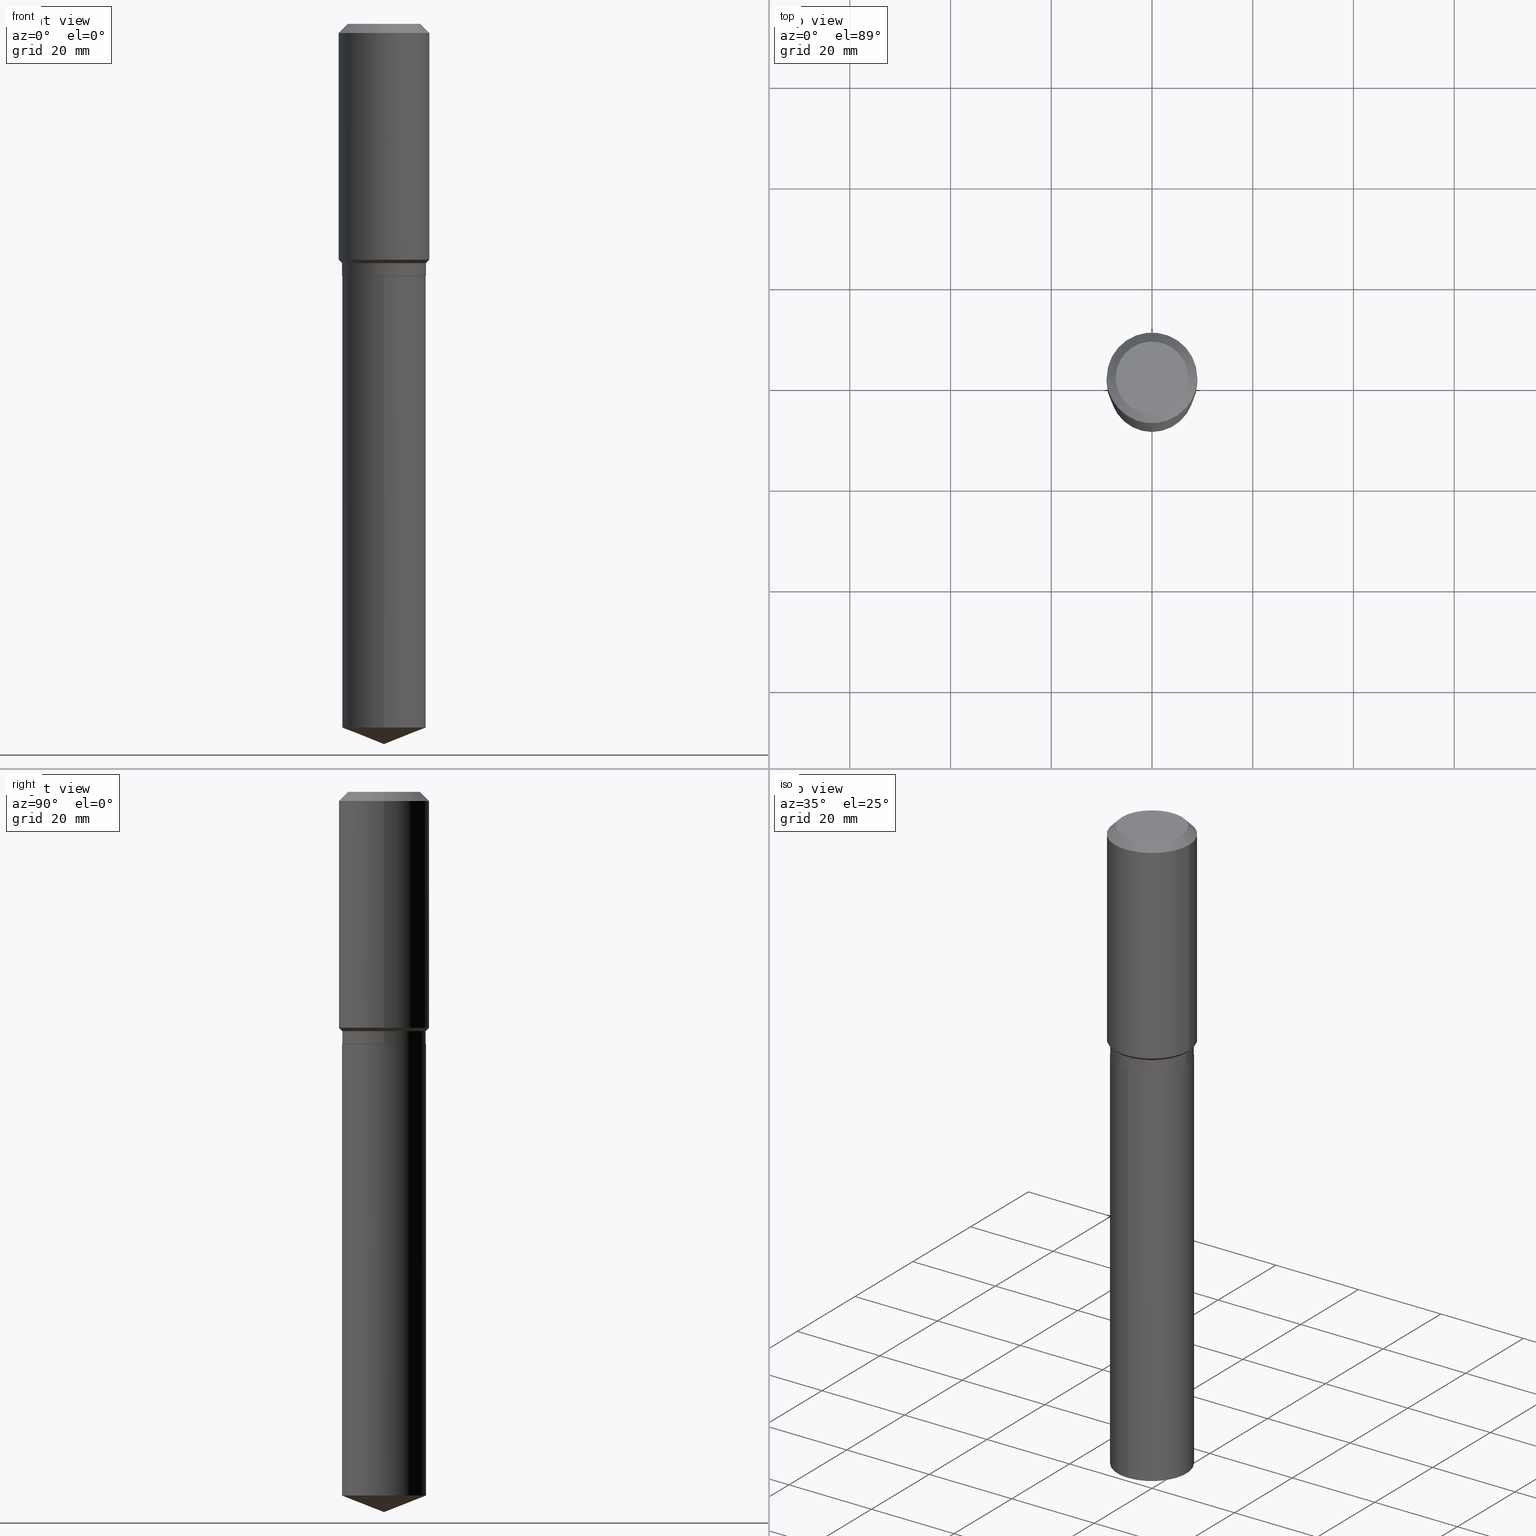
[diagram: canonical four-view strip — front | top / right | iso, engineering-drawing reading convention]
A machine part, canonical four-view strip (front | top / right | iso — engineering-drawing reading convention). The complete STEP part file that produces these views, byte-faithful:
ISO-10303-21;
HEADER;
FILE_DESCRIPTION (( 'STEP AP203' ),
    '1' );
FILE_NAME ('56469.STEP',
    '2024-04-24T18:11:35',
    ( '' ),
    ( '' ),
    'SwSTEP 2.0',
    'SolidWorks 2023',
    '' );
FILE_SCHEMA (( 'CONFIG_CONTROL_DESIGN' ));
ENDSEC;

DATA;
#1 = LINE ( 'NONE', #334, #25 ) ;
#2 = DIMENSIONAL_EXPONENTS ( 1.000000000000000000, 0.000000000000000000, 0.000000000000000000, 0.000000000000000000, 0.000000000000000000, 0.000000000000000000, 0.000000000000000000 ) ;
#3 = DIRECTION ( 'NONE',  ( -6.982962677686265133E-15, -1.000000000000000000, 3.330506545156066257E-15 ) ) ;
#4 = EDGE_CURVE ( 'NONE', #468, #271, #459, .T. ) ;
#5 = VERTEX_POINT ( 'NONE', #241 ) ;
#6 = EDGE_CURVE ( 'NONE', #116, #199, #254, .T. ) ;
#7 = FACE_OUTER_BOUND ( 'NONE', #166, .T. ) ;
#8 = VERTEX_POINT ( 'NONE', #355 ) ;
#9 = DIRECTION ( 'NONE',  ( -2.445468806185136597E-29, 3.491481338843145583E-15, 1.000000000000000000 ) ) ;
#10 = CC_DESIGN_APPROVAL ( #449, ( #222 ) ) ;
#11 = ORIENTED_EDGE ( 'NONE', *, *, #117, .F. ) ;
#12 = CC_DESIGN_PERSON_AND_ORGANIZATION_ASSIGNMENT ( #484, #100, ( #222 ) ) ;
#13 = DIRECTION ( 'NONE',  ( -2.445468806185136597E-29, 3.491481338843145583E-15, 1.000000000000000000 ) ) ;
#14 = EDGE_CURVE ( 'NONE', #423, #419, #167, .T. ) ;
#15 = DIRECTION ( 'NONE',  ( 1.000000000000000000, -6.982962677686268288E-15, 0.000000000000000000 ) ) ;
#16 = VECTOR ( 'NONE', #138, 39.37007874015748143 ) ;
#17 = EDGE_CURVE ( 'NONE', #112, #468, #443, .T. ) ;
#18 = CARTESIAN_POINT ( 'NONE',  ( 0.000000000000000000, 0.000000000000000000, 0.000000000000000000 ) ) ;
#19 = DIRECTION ( 'NONE',  ( -2.445468806185136597E-29, 3.491481338843145583E-15, 1.000000000000000000 ) ) ;
#20 = ORIENTED_EDGE ( 'NONE', *, *, #264, .F. ) ;
#21 = FACE_OUTER_BOUND ( 'NONE', #263, .T. ) ;
#22 = DIRECTION ( 'NONE',  ( 1.000000000000000000, -6.982962677686266711E-15, 4.876176775795935232E-29 ) ) ;
#23 = AXIS2_PLACEMENT_3D ( 'NONE', #384, #75, #299 ) ;
#24 = COORDINATED_UNIVERSAL_TIME_OFFSET ( 5, 0, .BEHIND. ) ;
#25 = VECTOR ( 'NONE', #121, 39.37007874015748143 ) ;
#26 = FACE_OUTER_BOUND ( 'NONE', #410, .T. ) ;
#27 = ADVANCED_FACE ( 'NONE', ( #275 ), #284, .T. ) ;
#28 = COORDINATED_UNIVERSAL_TIME_OFFSET ( 5, 0, .BEHIND. ) ;
#29 = CARTESIAN_POINT ( 'NONE',  ( -0.3543499999999999983, 2.226971542354313655E-15, -0.07087000000000043265 ) ) ;
#30 = EDGE_LOOP ( 'NONE', ( #227, #69, #383, #234 ) ) ;
#31 = LINE ( 'NONE', #329, #332 ) ;
#32 = CARTESIAN_POINT ( 'NONE',  ( -0.3281000000000000028, -4.369385695411934265E-15, -1.870200000000000085 ) ) ;
#33 = ORIENTED_EDGE ( 'NONE', *, *, #180, .F. ) ;
#34 = AXIS2_PLACEMENT_3D ( 'NONE', #400, #239, #395 ) ;
#35 = LINE ( 'NONE', #114, #377 ) ;
#36 = ORIENTED_EDGE ( 'NONE', *, *, #184, .F. ) ;
#37 = ADVANCED_FACE ( 'NONE', ( #427 ), #126, .F. ) ;
#38 = CARTESIAN_POINT ( 'NONE',  ( 4.814149891856059498E-29, -6.873330163646616008E-15, -1.968599999999999905 ) ) ;
#39 = ADVANCED_FACE ( 'NONE', ( #21 ), #321, .T. ) ;
#40 = ORIENTED_EDGE ( 'NONE', *, *, #277, .T. ) ;
#41 = CARTESIAN_POINT ( 'NONE',  ( 1.376831667299589145E-28, -1.965657123380192658E-14, -5.629999999999999893 ) ) ;
#42 = ORIENTED_EDGE ( 'NONE', *, *, #230, .T. ) ;
#43 = CLOSED_SHELL ( 'NONE', ( #326, #348, #95, #344, #474 ) ) ;
#44 = CARTESIAN_POINT ( 'NONE',  ( 2.331290716028936061E-15, 0.3280999999999930639, -1.968600000000001016 ) ) ;
#45 = PRODUCT ( '56469', '56469', '', ( #136 ) ) ;
#46 = ORIENTED_EDGE ( 'NONE', *, *, #193, .T. ) ;
#47 = DIRECTION ( 'NONE',  ( -2.445468806185136597E-29, 3.491481338843145583E-15, 1.000000000000000000 ) ) ;
#48 = CIRCLE ( 'NONE', #380, 0.3276000000000000023 ) ;
#49 = CC_DESIGN_DATE_AND_TIME_ASSIGNMENT ( #280, #409, ( #198 ) ) ;
#50 = EDGE_LOOP ( 'NONE', ( #482, #124, #385, #426 ) ) ;
#51 = DIRECTION ( 'NONE',  ( 0.7071067811865957564, -2.468850131082761932E-15, 0.7071067811864992780 ) ) ;
#52 = CARTESIAN_POINT ( 'NONE',  ( 0.3276000000000000023, -9.160948736856637115E-15, -1.968599999999999905 ) ) ;
#53 = CARTESIAN_POINT ( 'NONE',  ( 2.331290716029022836E-15, 0.3280999999999930639, -1.968600000000001016 ) ) ;
#54 = ADVANCED_FACE ( 'NONE', ( #91 ), #168, .T. ) ;
#55 = ORIENTED_EDGE ( 'NONE', *, *, #17, .F. ) ;
#56 = AXIS2_PLACEMENT_3D ( 'NONE', #293, #445, #108 ) ;
#57 = DIRECTION ( 'NONE',  ( -1.000000000000000000, 6.982962677686266711E-15, 0.000000000000000000 ) ) ;
#58 = PERSON_AND_ORGANIZATION ( #259, #281 ) ;
#59 = AXIS2_PLACEMENT_3D ( 'NONE', #38, #195, #3 ) ;
#60 = PLANE ( 'NONE',  #391 ) ;
#61 = DATE_AND_TIME ( #135, #82 ) ;
#62 = CYLINDRICAL_SURFACE ( 'NONE', #478, 0.3281000000000000028 ) ;
#63 = ADVANCED_FACE ( 'NONE', ( #237 ), #435, .T. ) ;
#64 = DIRECTION ( 'NONE',  ( 0.000000000000000000, 0.000000000000000000, 1.000000000000000000 ) ) ;
#65 = CONICAL_SURFACE ( 'NONE', #23, 0.3281000000000000028, 0.7853981633974521648 ) ;
#66 = DIRECTION ( 'NONE',  ( 2.438088387897960049E-29, -3.491481338843145188E-15, -1.000000000000000000 ) ) ;
#67 = SHAPE_DEFINITION_REPRESENTATION ( #205, #463 ) ;
#68 = CARTESIAN_POINT ( 'NONE',  ( -0.3281000000000000028, -4.369385695411934265E-15, -1.968099999999999961 ) ) ;
#69 = ORIENTED_EDGE ( 'NONE', *, *, #264, .T. ) ;
#70 = DIRECTION ( 'NONE',  ( 1.000000000000000000, -6.982962677686264344E-15, 0.000000000000000000 ) ) ;
#71 = LOCAL_TIME ( 14, 11, 35.00000000000000000, #137 ) ;
#72 = CARTESIAN_POINT ( 'NONE',  ( -0.3543499999999999983, -8.249709644559009364E-16, -0.07087000000000043265 ) ) ;
#73 = EDGE_LOOP ( 'NONE', ( #224, #328, #413, #11 ) ) ;
#74 = CARTESIAN_POINT ( 'NONE',  ( 0.3543499999999999983, -2.721854107321943733E-15, -0.07087000000000043265 ) ) ;
#75 = DIRECTION ( 'NONE',  ( -2.445468806185136597E-29, 3.491481338843145583E-15, 1.000000000000000000 ) ) ;
#76 = ORIENTED_EDGE ( 'NONE', *, *, #407, .T. ) ;
#77 = APPROVAL ( #245, 'UNSPECIFIED' ) ;
#78 = UNCERTAINTY_MEASURE_WITH_UNIT (LENGTH_MEASURE( 1.000000000000000082E-05 ), #318, 'distance_accuracy_value', 'NONE');
#79 = DIRECTION ( 'NONE',  ( 1.000000000000000000, -6.982962677686269077E-15, 0.000000000000000000 ) ) ;
#80 = VERTEX_POINT ( 'NONE', #127 ) ;
#81 = VECTOR ( 'NONE', #412, 39.37007874015748143 ) ;
#82 = LOCAL_TIME ( 14, 11, 35.00000000000000000, #104 ) ;
#83 = DIRECTION ( 'NONE',  ( -2.445662151041925692E-29, 3.491204458003717662E-15, 1.000000000000000000 ) ) ;
#84 = VERTEX_POINT ( 'NONE', #96 ) ;
#85 = CARTESIAN_POINT ( 'NONE',  ( 4.812927157452967257E-29, -6.871584422977194504E-15, -1.968099999999999961 ) ) ;
#86 = AXIS2_PLACEMENT_3D ( 'NONE', #422, #191, #270 ) ;
#87 = ORIENTED_EDGE ( 'NONE', *, *, #313, .T. ) ;
#88 = ORIENTED_EDGE ( 'NONE', *, *, #250, .F. ) ;
#89 = DIRECTION ( 'NONE',  ( -6.982962677686265922E-15, -1.000000000000000000, 3.498627837350035777E-15 ) ) ;
#90 = ORIENTED_EDGE ( 'NONE', *, *, #101, .T. ) ;
#91 = FACE_OUTER_BOUND ( 'NONE', #73, .T. ) ;
#92 = AXIS2_PLACEMENT_3D ( 'NONE', #228, #159, #235 ) ;
#93 = DIRECTION ( 'NONE',  ( -6.982962677686265922E-15, -1.000000000000000000, 3.498627837350035777E-15 ) ) ;
#94 = EDGE_LOOP ( 'NONE', ( #303, #175, #196, #87 ) ) ;
#95 = ADVANCED_FACE ( 'NONE', ( #398 ), #289, .T. ) ;
#96 = CARTESIAN_POINT ( 'NONE',  ( 1.376907791036604079E-28, -1.965548109856092942E-14, -5.629999999999999893 ) ) ;
#97 = DIRECTION ( 'NONE',  ( -2.445468806185136877E-29, 3.491481338843145188E-15, 1.000000000000000000 ) ) ;
#98 = APPLICATION_PROTOCOL_DEFINITION ( 'international standard', 'config_control_design', 1994, #356 ) ;
#99 = CALENDAR_DATE ( 2024, 24, 4 ) ;
#100 = PERSON_AND_ORGANIZATION_ROLE ( 'creator' ) ;
#101 = EDGE_CURVE ( 'NONE', #468, #112, #48, .T. ) ;
#102 = COORDINATED_UNIVERSAL_TIME_OFFSET ( 5, 0, .BEHIND. ) ;
#103 = ADVANCED_FACE ( 'NONE', ( #169 ), #312, .T. ) ;
#104 = COORDINATED_UNIVERSAL_TIME_OFFSET ( 5, 0, .BEHIND. ) ;
#105 = LINE ( 'NONE', #442, #186 ) ;
#106 = CALENDAR_DATE ( 2024, 24, 4 ) ;
#107 = ORIENTED_EDGE ( 'NONE', *, *, #128, .F. ) ;
#108 = DIRECTION ( 'NONE',  ( -6.982962677686265133E-15, -1.000000000000000000, 3.330506545156066257E-15 ) ) ;
#109 = AXIS2_PLACEMENT_3D ( 'NONE', #369, #376, #292 ) ;
#110 = ORIENTED_EDGE ( 'NONE', *, *, #155, .T. ) ;
#111 = DIRECTION ( 'NONE',  ( -6.982962677686265133E-15, -1.000000000000000000, 3.330506545156066257E-15 ) ) ;
#112 = VERTEX_POINT ( 'NONE', #447 ) ;
#113 = CONICAL_SURFACE ( 'NONE', #397, 99.94676754583906586, 1.195550537616116404 ) ;
#114 = CARTESIAN_POINT ( 'NONE',  ( 0.3281000000000000028, -8.820878454453315598E-15, -1.870200000000000085 ) ) ;
#115 = AXIS2_PLACEMENT_3D ( 'NONE', #274, #47, #131 ) ;
#116 = VERTEX_POINT ( 'NONE', #74 ) ;
#117 = EDGE_CURVE ( 'NONE', #8, #116, #149, .T. ) ;
#118 = DIRECTION ( 'NONE',  ( -6.982962677686265133E-15, -1.000000000000000000, 3.330506545156066257E-15 ) ) ;
#119 = CIRCLE ( 'NONE', #273, 0.3281000000000000028 ) ;
#120 = CC_DESIGN_SECURITY_CLASSIFICATION ( #480, ( #222 ) ) ;
#121 = DIRECTION ( 'NONE',  ( -0.7071067811865957564, 7.493145998870527710E-15, 0.7071067811864992780 ) ) ;
#122 = VERTEX_POINT ( 'NONE', #225 ) ;
#123 = DIRECTION ( 'NONE',  ( 1.000000000000000000, -6.982962677686269077E-15, 0.000000000000000000 ) ) ;
#124 = ORIENTED_EDGE ( 'NONE', *, *, #279, .T. ) ;
#125 = CLOSED_SHELL ( 'NONE', ( #252, #27, #54, #368, #454, #103, #63, #439, #217, #172, #37, #39 ) ) ;
#126 = PLANE ( 'NONE',  #359 ) ;
#127 = CARTESIAN_POINT ( 'NONE',  ( -2.291110054548815599E-15, -0.3281000000000068861, -1.968599999999998795 ) ) ;
#128 = EDGE_CURVE ( 'NONE', #271, #190, #258, .T. ) ;
#129 = ORIENTED_EDGE ( 'NONE', *, *, #117, .T. ) ;
#130 = EDGE_CURVE ( 'NONE', #187, #122, #306, .T. ) ;
#131 = DIRECTION ( 'NONE',  ( 1.000000000000000000, -6.982962677686268288E-15, 0.000000000000000000 ) ) ;
#132 = CYLINDRICAL_SURFACE ( 'NONE', #144, 0.3281000000000000028 ) ;
#133 = CALENDAR_DATE ( 2024, 24, 4 ) ;
#134 = DIRECTION ( 'NONE',  ( 6.982962677686265922E-15, 1.000000000000000000, -3.491204458003717662E-15 ) ) ;
#135 = CALENDAR_DATE ( 2024, 24, 4 ) ;
#136 = MECHANICAL_CONTEXT ( 'NONE', #305, 'mechanical' ) ;
#137 = COORDINATED_UNIVERSAL_TIME_OFFSET ( 5, 0, .BEHIND. ) ;
#138 = DIRECTION ( 'NONE',  ( -2.445662151041925692E-29, 3.491204458003717662E-15, 1.000000000000000000 ) ) ;
#139 = AXIS2_PLACEMENT_3D ( 'NONE', #218, #330, #488 ) ;
#140 = EDGE_CURVE ( 'NONE', #421, #199, #31, .T. ) ;
#141 = SECURITY_CLASSIFICATION_LEVEL ( 'unclassified' ) ;
#142 = ORIENTED_EDGE ( 'NONE', *, *, #101, .F. ) ;
#143 = PLANE ( 'NONE',  #317 ) ;
#144 = AXIS2_PLACEMENT_3D ( 'NONE', #233, #83, #460 ) ;
#145 = PERSON_AND_ORGANIZATION ( #259, #281 ) ;
#146 = AXIS2_PLACEMENT_3D ( 'NONE', #430, #269, #57 ) ;
#147 = DIRECTION ( 'NONE',  ( 6.611014441532057911E-15, 0.9304175679820260170, 0.3665012267242933608 ) ) ;
#148 = ORIENTED_EDGE ( 'NONE', *, *, #240, .F. ) ;
#149 = LINE ( 'NONE', #373, #170 ) ;
#150 = VECTOR ( 'NONE', #304, 39.37007874015748143 ) ;
#151 = VERTEX_POINT ( 'NONE', #188 ) ;
#152 = APPROVAL ( #438, 'UNSPECIFIED' ) ;
#153 = DESIGN_CONTEXT ( 'detailed design', #356, 'design' ) ;
#154 = DIRECTION ( 'NONE',  ( 1.000000000000000000, -6.982962677686266711E-15, 0.000000000000000000 ) ) ;
#155 = EDGE_CURVE ( 'NONE', #190, #187, #105, .T. ) ;
#156 =( GEOMETRIC_REPRESENTATION_CONTEXT ( 3 ) GLOBAL_UNCERTAINTY_ASSIGNED_CONTEXT ( ( #78 ) ) GLOBAL_UNIT_ASSIGNED_CONTEXT ( ( #318, #177, #179 ) ) REPRESENTATION_CONTEXT ( 'NONE', 'WORKASPACE' ) );
#157 = EDGE_LOOP ( 'NONE', ( #142, #55 ) ) ;
#158 = CARTESIAN_POINT ( 'NONE',  ( 4.573515761327442915E-29, -6.529768399904451484E-15, -1.870200000000000085 ) ) ;
#159 = DIRECTION ( 'NONE',  ( -2.445468806185136597E-29, 3.491481338843145583E-15, 1.000000000000000000 ) ) ;
#160 = MANIFOLD_SOLID_BREP ( 'Body-Move/Copy2[2]', #125 ) ;
#161 = EDGE_LOOP ( 'NONE', ( #223, #489 ) ) ;
#162 = LOCAL_TIME ( 14, 11, 35.00000000000000000, #24 ) ;
#163 = CARTESIAN_POINT ( 'NONE',  ( 4.509322205165082609E-29, -6.438117014759818997E-15, -1.843950000000000200 ) ) ;
#164 = MANIFOLD_SOLID_BREP ( 'Body-Move/Copy2[1]', #43 ) ;
#165 = ORIENTED_EDGE ( 'NONE', *, *, #396, .F. ) ;
#166 = EDGE_LOOP ( 'NONE', ( #90, #301, #107, #372 ) ) ;
#167 = CIRCLE ( 'NONE', #34, 0.2834800000000000098 ) ;
#168 = CYLINDRICAL_SURFACE ( 'NONE', #211, 0.3543500000000001648 ) ;
#169 = FACE_OUTER_BOUND ( 'NONE', #50, .T. ) ;
#170 = VECTOR ( 'NONE', #483, 39.37007874015748143 ) ;
#171 = APPROVAL_PERSON_ORGANIZATION ( #327, #449, #476 ) ;
#172 = ADVANCED_FACE ( 'NONE', ( #253 ), #143, .F. ) ;
#173 = ORIENTED_EDGE ( 'NONE', *, *, #130, .T. ) ;
#174 = CARTESIAN_POINT ( 'NONE',  ( -8.251721416666256000E-28, 1.177929682434137651E-13, 33.74007874015748598 ) ) ;
#175 = ORIENTED_EDGE ( 'NONE', *, *, #381, .F. ) ;
#176 = DIRECTION ( 'NONE',  ( 2.445662151041925411E-29, -3.491204458003717662E-15, -1.000000000000000000 ) ) ;
#177 =( NAMED_UNIT ( * ) PLANE_ANGLE_UNIT ( ) SI_UNIT ( $, .RADIAN. ) );
#178 = AXIS2_PLACEMENT_3D ( 'NONE', #351, #428, #93 ) ;
#179 =( NAMED_UNIT ( * ) SI_UNIT ( $, .STERADIAN. ) SOLID_ANGLE_UNIT ( ) );
#180 = EDGE_CURVE ( 'NONE', #80, #324, #192, .T. ) ;
#181 = AXIS2_PLACEMENT_3D ( 'NONE', #163, #308, #123 ) ;
#182 = CALENDAR_DATE ( 2024, 24, 4 ) ;
#183 = EDGE_CURVE ( 'NONE', #151, #80, #257, .T. ) ;
#184 = EDGE_CURVE ( 'NONE', #419, #199, #477, .T. ) ;
#185 = LINE ( 'NONE', #371, #455 ) ;
#186 = VECTOR ( 'NONE', #325, 39.37007874015748143 ) ;
#187 = VERTEX_POINT ( 'NONE', #32 ) ;
#188 = CARTESIAN_POINT ( 'NONE',  ( -2.291110054548728824E-15, -0.3281000000000190986, -5.500757972950736097 ) ) ;
#189 = ORIENTED_EDGE ( 'NONE', *, *, #407, .F. ) ;
#190 = VERTEX_POINT ( 'NONE', #68 ) ;
#191 = DIRECTION ( 'NONE',  ( -2.445662151041925692E-29, 3.491204458003717662E-15, 1.000000000000000000 ) ) ;
#192 = CIRCLE ( 'NONE', #56, 0.3281000000000000028 ) ;
#193 = EDGE_CURVE ( 'NONE', #84, #5, #185, .T. ) ;
#194 = ORIENTED_EDGE ( 'NONE', *, *, #140, .F. ) ;
#195 = DIRECTION ( 'NONE',  ( -2.445662151041925692E-29, 3.491204458003717662E-15, 1.000000000000000000 ) ) ;
#196 = ORIENTED_EDGE ( 'NONE', *, *, #184, .T. ) ;
#197 = CARTESIAN_POINT ( 'NONE',  ( 1.733103742943417062E-30, -2.474412824838152853E-16, -0.07087000000000043265 ) ) ;
#198 = PRODUCT_DEFINITION ( 'UNKNOWN', '', #222, #153 ) ;
#199 = VERTEX_POINT ( 'NONE', #72 ) ;
#200 = FACE_OUTER_BOUND ( 'NONE', #446, .T. ) ;
#201 = ORIENTED_EDGE ( 'NONE', *, *, #128, .T. ) ;
#202 = DIRECTION ( 'NONE',  ( 1.000000000000000000, -6.982962677686265922E-15, 4.876176775795935793E-29 ) ) ;
#203 = DIRECTION ( 'NONE',  ( 1.000000000000000000, -6.982962677686268288E-15, 0.000000000000000000 ) ) ;
#204 = CARTESIAN_POINT ( 'NONE',  ( 4.814149891856059498E-29, -6.873330163646616008E-15, -1.968599999999999905 ) ) ;
#205 = PRODUCT_DEFINITION_SHAPE ( 'NONE', 'NONE',  #198 ) ;
#206 = DIRECTION ( 'NONE',  ( 1.000000000000000000, -6.982962677686266711E-15, 0.000000000000000000 ) ) ;
#207 = DIRECTION ( 'NONE',  ( -0.7071067811865502373, 7.493145998870363626E-15, 0.7071067811865447972 ) ) ;
#208 = ORIENTED_EDGE ( 'NONE', *, *, #279, .F. ) ;
#209 = CARTESIAN_POINT ( 'NONE',  ( 0.000000000000000000, 0.000000000000000000, 0.000000000000000000 ) ) ;
#210 = PERSON_AND_ORGANIZATION ( #259, #281 ) ;
#211 = AXIS2_PLACEMENT_3D ( 'NONE', #209, #465, #310 ) ;
#212 = DATE_AND_TIME ( #99, #162 ) ;
#213 =( LENGTH_UNIT ( ) NAMED_UNIT ( * ) SI_UNIT ( $, .METRE. ) );
#214 = CIRCLE ( 'NONE', #490, 0.3543499999999999983 ) ;
#215 = CARTESIAN_POINT ( 'NONE',  ( -0.3281000000000000028, -4.198477683875563149E-15, -1.870200000000000085 ) ) ;
#216 = FACE_OUTER_BOUND ( 'NONE', #161, .T. ) ;
#217 = ADVANCED_FACE ( 'NONE', ( #287 ), #350, .T. ) ;
#218 = CARTESIAN_POINT ( 'NONE',  ( 1.733103742943417062E-30, -2.474412824838152853E-16, -0.07087000000000043265 ) ) ;
#219 = CIRCLE ( 'NONE', #358, 0.3543500000000002204 ) ;
#220 = DIRECTION ( 'NONE',  ( -2.445468806185136597E-29, 3.491481338843145583E-15, 1.000000000000000000 ) ) ;
#221 = DIRECTION ( 'NONE',  ( -1.000000000000000000, 6.982962677686265922E-15, -4.876176775795935793E-29 ) ) ;
#222 = PRODUCT_DEFINITION_FORMATION_WITH_SPECIFIED_SOURCE ( 'ANY', '', #45, .NOT_KNOWN. ) ;
#223 = ORIENTED_EDGE ( 'NONE', *, *, #180, .T. ) ;
#224 = ORIENTED_EDGE ( 'NONE', *, *, #364, .T. ) ;
#225 = CARTESIAN_POINT ( 'NONE',  ( 0.3281000000000000028, -8.820878454453315598E-15, -1.870200000000000085 ) ) ;
#226 = DIRECTION ( 'NONE',  ( -2.445468806185136597E-29, 3.491481338843145583E-15, 1.000000000000000000 ) ) ;
#227 = ORIENTED_EDGE ( 'NONE', *, *, #277, .F. ) ;
#228 = CARTESIAN_POINT ( 'NONE',  ( 4.814149891856059498E-29, -6.873330163646616008E-15, -1.968599999999999905 ) ) ;
#229 = ORIENTED_EDGE ( 'NONE', *, *, #396, .T. ) ;
#230 = EDGE_CURVE ( 'NONE', #151, #5, #393, .T. ) ;
#231 = LINE ( 'NONE', #315, #451 ) ;
#232 = ORIENTED_EDGE ( 'NONE', *, *, #17, .T. ) ;
#233 = CARTESIAN_POINT ( 'NONE',  ( 4.814149891856059498E-29, -6.873330163646616008E-15, -1.968599999999999905 ) ) ;
#234 = ORIENTED_EDGE ( 'NONE', *, *, #404, .F. ) ;
#235 = DIRECTION ( 'NONE',  ( 1.000000000000000000, -6.982962677686268288E-15, 0.000000000000000000 ) ) ;
#236 = VECTOR ( 'NONE', #207, 39.37007874015748143 ) ;
#237 = FACE_OUTER_BOUND ( 'NONE', #354, .T. ) ;
#238 = CC_DESIGN_PERSON_AND_ORGANIZATION_ASSIGNMENT ( #145, #255, ( #480 ) ) ;
#239 = DIRECTION ( 'NONE',  ( -2.445468806185136597E-29, 3.491481338843145583E-15, 1.000000000000000000 ) ) ;
#240 = EDGE_CURVE ( 'NONE', #187, #421, #260, .T. ) ;
#241 = CARTESIAN_POINT ( 'NONE',  ( 2.331290716029022441E-15, 0.3280999999999807404, -5.500757972950738761 ) ) ;
#242 = ORIENTED_EDGE ( 'NONE', *, *, #14, .T. ) ;
#243 = CARTESIAN_POINT ( 'NONE',  ( 4.814149891856059498E-29, -6.873330163646616008E-15, -1.968599999999999905 ) ) ;
#244 = DIRECTION ( 'NONE',  ( 1.000000000000000000, 0.000000000000000000, 0.000000000000000000 ) ) ;
#245 = APPROVAL_STATUS ( 'not_yet_approved' ) ;
#246 = VECTOR ( 'NONE', #51, 39.37007874015748143 ) ;
#247 = CARTESIAN_POINT ( 'NONE',  ( 0.000000000000000000, 0.000000000000000000, 0.000000000000000000 ) ) ;
#248 = DATE_AND_TIME ( #106, #432 ) ;
#249 = AXIS2_PLACEMENT_3D ( 'NONE', #18, #466, #276 ) ;
#250 = EDGE_CURVE ( 'NONE', #112, #190, #1, .T. ) ;
#251 = APPROVAL_DATE_TIME ( #319, #152 ) ;
#252 = ADVANCED_FACE ( 'NONE', ( #7 ), #479, .T. ) ;
#253 = FACE_OUTER_BOUND ( 'NONE', #331, .T. ) ;
#254 = CIRCLE ( 'NONE', #417, 0.3543499999999999983 ) ;
#255 = PERSON_AND_ORGANIZATION_ROLE ( 'classification_officer' ) ;
#256 = ORIENTED_EDGE ( 'NONE', *, *, #381, .T. ) ;
#257 = LINE ( 'NONE', #473, #16 ) ;
#258 = CIRCLE ( 'NONE', #311, 0.3281000000000000028 ) ;
#259 = PERSON ( 'UNSPECIFIED', 'UNSPECIFIED', 'UNSPECIFIED', ('UNSPECIFIED'), ('UNSPECIFIED'), ('UNSPECIFIED') ) ;
#260 = LINE ( 'NONE', #215, #236 ) ;
#261 = CARTESIAN_POINT ( 'NONE',  ( 1.345261495780264828E-28, -1.920481582518560901E-14, -5.500757972950737873 ) ) ;
#262 = AXIS2_PLACEMENT_3D ( 'NONE', #406, #64, #244 ) ;
#263 = EDGE_LOOP ( 'NONE', ( #88, #232, #338, #208 ) ) ;
#264 = EDGE_CURVE ( 'NONE', #5, #151, #266, .T. ) ;
#265 = DIRECTION ( 'NONE',  ( 1.000000000000000000, -6.982962677686266711E-15, 0.000000000000000000 ) ) ;
#266 = CIRCLE ( 'NONE', #323, 0.3281000000000000028 ) ;
#267 = LINE ( 'NONE', #44, #150 ) ;
#268 = ORIENTED_EDGE ( 'NONE', *, *, #313, .F. ) ;
#269 = DIRECTION ( 'NONE',  ( 2.445468806185136597E-29, -3.491481338843145583E-15, -1.000000000000000000 ) ) ;
#270 = DIRECTION ( 'NONE',  ( -6.982962677686265133E-15, -1.000000000000000000, 3.330506545156066257E-15 ) ) ;
#271 = VERTEX_POINT ( 'NONE', #333 ) ;
#272 = DIRECTION ( 'NONE',  ( -2.438088387897960049E-29, 3.491481338843145188E-15, 1.000000000000000000 ) ) ;
#273 = AXIS2_PLACEMENT_3D ( 'NONE', #85, #9, #392 ) ;
#274 = CARTESIAN_POINT ( 'NONE',  ( 4.814149891856059498E-29, -6.873330163646616008E-15, -1.968599999999999905 ) ) ;
#275 = FACE_OUTER_BOUND ( 'NONE', #453, .T. ) ;
#276 = DIRECTION ( 'NONE',  ( 1.000000000000000000, -6.982962677686266711E-15, 4.876176775795935232E-29 ) ) ;
#277 = EDGE_CURVE ( 'NONE', #5, #324, #267, .T. ) ;
#278 = LINE ( 'NONE', #41, #362 ) ;
#279 = EDGE_CURVE ( 'NONE', #190, #271, #119, .T. ) ;
#280 = DATE_AND_TIME ( #133, #291 ) ;
#281 = ORGANIZATION ( 'UNSPECIFIED', 'UNSPECIFIED', '' ) ;
#282 = CARTESIAN_POINT ( 'NONE',  ( 0.3276000000000000023, -9.160948736856637115E-15, -1.968599999999999905 ) ) ;
#283 = APPROVAL_ROLE ( '' ) ;
#284 = CONICAL_SURFACE ( 'NONE', #146, 0.3543499999999999983, 0.7853981633974452814 ) ;
#285 = AXIS2_PLACEMENT_3D ( 'NONE', #158, #452, #265 ) ;
#286 = PERSON_AND_ORGANIZATION ( #259, #281 ) ;
#287 = FACE_OUTER_BOUND ( 'NONE', #94, .T. ) ;
#288 = LINE ( 'NONE', #440, #388 ) ;
#289 = CONICAL_SURFACE ( 'NONE', #178, 99.94676754583906586, 1.195550537616116404 ) ;
#290 = DATE_TIME_ROLE ( 'classification_date' ) ;
#291 = LOCAL_TIME ( 14, 11, 35.00000000000000000, #102 ) ;
#292 = DIRECTION ( 'NONE',  ( 1.000000000000000000, -6.982962677686266711E-15, 0.000000000000000000 ) ) ;
#293 = CARTESIAN_POINT ( 'NONE',  ( 4.814149891856059498E-29, -6.873330163646616008E-15, -1.968599999999999905 ) ) ;
#294 = PERSON_AND_ORGANIZATION ( #259, #281 ) ;
#295 = AXIS2_PLACEMENT_3D ( 'NONE', #450, #226, #378 ) ;
#296 = EDGE_LOOP ( 'NONE', ( #194, #444, #129, #268 ) ) ;
#297 = CARTESIAN_POINT ( 'NONE',  ( 4.812927157452967257E-29, -6.871584422977194504E-15, -1.968099999999999961 ) ) ;
#298 = ORIENTED_EDGE ( 'NONE', *, *, #193, .F. ) ;
#299 = DIRECTION ( 'NONE',  ( 1.000000000000000000, -6.982962677686266711E-15, 0.000000000000000000 ) ) ;
#300 = EDGE_CURVE ( 'NONE', #84, #151, #278, .T. ) ;
#301 = ORIENTED_EDGE ( 'NONE', *, *, #250, .T. ) ;
#302 = FACE_OUTER_BOUND ( 'NONE', #340, .T. ) ;
#303 = ORIENTED_EDGE ( 'NONE', *, *, #367, .F. ) ;
#304 = DIRECTION ( 'NONE',  ( -2.445662151041925692E-29, 3.491204458003717662E-15, 1.000000000000000000 ) ) ;
#305 = APPLICATION_CONTEXT ( 'configuration controlled 3d designs of mechanical parts and assemblies' ) ;
#306 = CIRCLE ( 'NONE', #109, 0.3281000000000000028 ) ;
#307 = ORIENTED_EDGE ( 'NONE', *, *, #240, .T. ) ;
#308 = DIRECTION ( 'NONE',  ( -2.445468806185136597E-29, 3.491481338843145583E-15, 1.000000000000000000 ) ) ;
#309 = ORIENTED_EDGE ( 'NONE', *, *, #6, .T. ) ;
#310 = DIRECTION ( 'NONE',  ( 1.000000000000000000, -6.982962677686265922E-15, 4.876176775795935793E-29 ) ) ;
#311 = AXIS2_PLACEMENT_3D ( 'NONE', #297, #411, #70 ) ;
#312 = CYLINDRICAL_SURFACE ( 'NONE', #249, 0.3281000000000000028 ) ;
#313 = EDGE_CURVE ( 'NONE', #199, #116, #214, .T. ) ;
#314 = ORIENTED_EDGE ( 'NONE', *, *, #364, .F. ) ;
#315 = CARTESIAN_POINT ( 'NONE',  ( 0.3543499999999999983, -2.678458747994157430E-15, -0.07087000000000043265 ) ) ;
#316 = EDGE_LOOP ( 'NONE', ( #76, #307, #314, #165 ) ) ;
#317 = AXIS2_PLACEMENT_3D ( 'NONE', #408, #66, #221 ) ;
#318 =( CONVERSION_BASED_UNIT ( 'INCH', #322 ) LENGTH_UNIT ( ) NAMED_UNIT ( #2 ) );
#319 = DATE_AND_TIME ( #182, #71 ) ;
#320 = CC_DESIGN_PERSON_AND_ORGANIZATION_ASSIGNMENT ( #58, #402, ( #198 ) ) ;
#321 = CONICAL_SURFACE ( 'NONE', #485, 0.3276000000000000023, 0.7853981633975165577 ) ;
#322 = LENGTH_MEASURE_WITH_UNIT ( LENGTH_MEASURE( 0.02539999999999999897 ), #213 );
#323 = AXIS2_PLACEMENT_3D ( 'NONE', #261, #353, #118 ) ;
#324 = VERTEX_POINT ( 'NONE', #53 ) ;
#325 = DIRECTION ( 'NONE',  ( -2.445468806185136877E-29, 3.491481338843145188E-15, 1.000000000000000000 ) ) ;
#326 = ADVANCED_FACE ( 'NONE', ( #302 ), #420, .T. ) ;
#327 = PERSON_AND_ORGANIZATION ( #259, #281 ) ;
#328 = ORIENTED_EDGE ( 'NONE', *, *, #140, .T. ) ;
#329 = CARTESIAN_POINT ( 'NONE',  ( -0.3543500000000001648, 2.517808184165916180E-15, -1.743024649231826627E-29 ) ) ;
#330 = DIRECTION ( 'NONE',  ( 2.445468806185136597E-29, -3.491481338843145583E-15, -1.000000000000000000 ) ) ;
#331 = EDGE_LOOP ( 'NONE', ( #256, #242 ) ) ;
#332 = VECTOR ( 'NONE', #487, 39.37007874015748143 ) ;
#333 = CARTESIAN_POINT ( 'NONE',  ( 0.3281000000000000028, -9.162694477526057830E-15, -1.968099999999999961 ) ) ;
#334 = CARTESIAN_POINT ( 'NONE',  ( -0.3276000000000000023, -4.545592161296527783E-15, -1.968599999999999905 ) ) ;
#335 = EDGE_CURVE ( 'NONE', #421, #8, #219, .T. ) ;
#336 = EDGE_LOOP ( 'NONE', ( #298, #399, #20 ) ) ;
#337 = FACE_OUTER_BOUND ( 'NONE', #30, .T. ) ;
#338 = ORIENTED_EDGE ( 'NONE', *, *, #4, .T. ) ;
#339 = DIRECTION ( 'NONE',  ( -2.445662151041925692E-29, 3.491204458003717662E-15, 1.000000000000000000 ) ) ;
#340 = EDGE_LOOP ( 'NONE', ( #42, #40, #33, #486 ) ) ;
#341 = CC_DESIGN_APPROVAL ( #152, ( #480 ) ) ;
#342 = DIRECTION ( 'NONE',  ( -2.445468806185136597E-29, 3.491481338843145583E-15, 1.000000000000000000 ) ) ;
#343 = ORIENTED_EDGE ( 'NONE', *, *, #230, .F. ) ;
#344 = ADVANCED_FACE ( 'NONE', ( #337 ), #132, .T. ) ;
#345 = AXIS2_PLACEMENT_3D ( 'NONE', #394, #464, #206 ) ;
#346 = DIRECTION ( 'NONE',  ( -2.445468806185136597E-29, 3.491481338843145583E-15, 1.000000000000000000 ) ) ;
#347 = CC_DESIGN_PERSON_AND_ORGANIZATION_ASSIGNMENT ( #210, #434, ( #45 ) ) ;
#348 = ADVANCED_FACE ( 'NONE', ( #200 ), #113, .T. ) ;
#349 = AXIS2_PLACEMENT_3D ( 'NONE', #401, #403, #357 ) ;
#350 = CONICAL_SURFACE ( 'NONE', #139, 0.3543499999999999983, 0.7853981633974452814 ) ;
#351 = CARTESIAN_POINT ( 'NONE',  ( -8.251721416666256000E-28, 1.177929682434137651E-13, 33.74007874015748598 ) ) ;
#352 = APPROVAL_PERSON_ORGANIZATION ( #286, #152, #283 ) ;
#353 = DIRECTION ( 'NONE',  ( -2.445662151041925692E-29, 3.491204458003717662E-15, 1.000000000000000000 ) ) ;
#354 = EDGE_LOOP ( 'NONE', ( #148, #173, #229, #461 ) ) ;
#355 = CARTESIAN_POINT ( 'NONE',  ( 0.3543500000000002204, -8.912529839597949663E-15, -1.843950000000000200 ) ) ;
#356 = APPLICATION_CONTEXT ( 'configuration controlled 3d designs of mechanical parts and assemblies' ) ;
#357 = DIRECTION ( 'NONE',  ( 1.000000000000000000, -6.982962677686265922E-15, 4.876176775795935793E-29 ) ) ;
#358 = AXIS2_PLACEMENT_3D ( 'NONE', #456, #19, #79 ) ;
#359 = AXIS2_PLACEMENT_3D ( 'NONE', #243, #272, #202 ) ;
#360 = APPROVAL_DATE_TIME ( #212, #77 ) ;
#361 = PRODUCT_RELATED_PRODUCT_CATEGORY ( 'detail', '', ( #45 ) ) ;
#362 = VECTOR ( 'NONE', #382, 39.37007874015748143 ) ;
#363 = CARTESIAN_POINT ( 'NONE',  ( -0.3543500000000002204, -3.920308830593902817E-15, -1.843950000000000200 ) ) ;
#364 = EDGE_CURVE ( 'NONE', #8, #421, #375, .T. ) ;
#365 = CYLINDRICAL_SURFACE ( 'NONE', #349, 0.3543500000000001648 ) ;
#366 = CARTESIAN_POINT ( 'NONE',  ( 4.814149891856059498E-29, -6.873330163646616008E-15, -1.968599999999999905 ) ) ;
#367 = EDGE_CURVE ( 'NONE', #423, #116, #231, .T. ) ;
#368 = ADVANCED_FACE ( 'NONE', ( #425 ), #65, .T. ) ;
#369 = CARTESIAN_POINT ( 'NONE',  ( 4.573515761327442915E-29, -6.529768399904451484E-15, -1.870200000000000085 ) ) ;
#370 = APPROVAL_PERSON_ORGANIZATION ( #431, #77, #469 ) ;
#371 = CARTESIAN_POINT ( 'NONE',  ( 1.376908458551920831E-28, -1.965548109856092942E-14, -5.629999999999999893 ) ) ;
#372 = ORIENTED_EDGE ( 'NONE', *, *, #4, .F. ) ;
#373 = CARTESIAN_POINT ( 'NONE',  ( 0.3543500000000001648, -2.474412824838129483E-15, 1.727873240503290590E-29 ) ) ;
#374 = ORIENTED_EDGE ( 'NONE', *, *, #14, .F. ) ;
#375 = CIRCLE ( 'NONE', #181, 0.3543500000000002204 ) ;
#376 = DIRECTION ( 'NONE',  ( -2.445468806185136597E-29, 3.491481338843145583E-15, 1.000000000000000000 ) ) ;
#377 = VECTOR ( 'NONE', #418, 39.37007874015748143 ) ;
#378 = DIRECTION ( 'NONE',  ( 1.000000000000000000, -6.982962677686266711E-15, 4.876249319814053138E-29 ) ) ;
#379 = CC_DESIGN_DATE_AND_TIME_ASSIGNMENT ( #61, #290, ( #480 ) ) ;
#380 = AXIS2_PLACEMENT_3D ( 'NONE', #204, #346, #15 ) ;
#381 = EDGE_CURVE ( 'NONE', #419, #423, #386, .T. ) ;
#382 = DIRECTION ( 'NONE',  ( -6.497071151882111948E-15, -0.9304175679820234635, 0.3665012267242999666 ) ) ;
#383 = ORIENTED_EDGE ( 'NONE', *, *, #183, .T. ) ;
#384 = CARTESIAN_POINT ( 'NONE',  ( 4.573515761327442915E-29, -6.529768399904451484E-15, -1.870200000000000085 ) ) ;
#385 = ORIENTED_EDGE ( 'NONE', *, *, #416, .T. ) ;
#386 = CIRCLE ( 'NONE', #295, 0.2834800000000000098 ) ;
#387 = DIRECTION ( 'NONE',  ( -2.445468806185136597E-29, 3.491481338843145583E-15, 1.000000000000000000 ) ) ;
#388 = VECTOR ( 'NONE', #97, 39.37007874015748143 ) ;
#389 = ORIENTED_EDGE ( 'NONE', *, *, #300, .F. ) ;
#390 = CARTESIAN_POINT ( 'NONE',  ( 1.733103742943417062E-30, -2.474412824838152853E-16, -0.07087000000000043265 ) ) ;
#391 = AXIS2_PLACEMENT_3D ( 'NONE', #366, #176, #134 ) ;
#392 = DIRECTION ( 'NONE',  ( 1.000000000000000000, -6.982962677686264344E-15, 0.000000000000000000 ) ) ;
#393 = CIRCLE ( 'NONE', #448, 0.3281000000000000028 ) ;
#394 = CARTESIAN_POINT ( 'NONE',  ( 4.573515761327442915E-29, -6.529768399904451484E-15, -1.870200000000000085 ) ) ;
#395 = DIRECTION ( 'NONE',  ( 1.000000000000000000, -6.982962677686266711E-15, 4.876249319814053138E-29 ) ) ;
#396 = EDGE_CURVE ( 'NONE', #122, #8, #35, .T. ) ;
#397 = AXIS2_PLACEMENT_3D ( 'NONE', #174, #339, #89 ) ;
#398 = FACE_OUTER_BOUND ( 'NONE', #336, .T. ) ;
#399 = ORIENTED_EDGE ( 'NONE', *, *, #300, .T. ) ;
#400 = CARTESIAN_POINT ( 'NONE',  ( -9.439721640706191963E-47, 1.347742071746725396E-32, 3.860086710912455110E-18 ) ) ;
#401 = CARTESIAN_POINT ( 'NONE',  ( 0.000000000000000000, 0.000000000000000000, 0.000000000000000000 ) ) ;
#402 = PERSON_AND_ORGANIZATION_ROLE ( 'creator' ) ;
#403 = DIRECTION ( 'NONE',  ( -2.445468806185136597E-29, 3.491481338843145583E-15, 1.000000000000000000 ) ) ;
#404 = EDGE_CURVE ( 'NONE', #324, #80, #436, .T. ) ;
#405 = APPROVAL_STATUS ( 'not_yet_approved' ) ;
#406 = CARTESIAN_POINT ( 'NONE',  ( 0.000000000000000000, 0.000000000000000000, 0.000000000000000000 ) ) ;
#407 = EDGE_CURVE ( 'NONE', #122, #187, #424, .T. ) ;
#408 = CARTESIAN_POINT ( 'NONE',  ( -4.719860820353095981E-47, 6.738710358733626979E-33, 1.930043355456227555E-18 ) ) ;
#409 = DATE_TIME_ROLE ( 'creation_date' ) ;
#410 = EDGE_LOOP ( 'NONE', ( #201, #110, #189, #415 ) ) ;
#411 = DIRECTION ( 'NONE',  ( -2.445468806185136597E-29, 3.491481338843145583E-15, 1.000000000000000000 ) ) ;
#412 = DIRECTION ( 'NONE',  ( -0.7071067811865453523, 2.468850131082234184E-15, -0.7071067811865496822 ) ) ;
#413 = ORIENTED_EDGE ( 'NONE', *, *, #6, .F. ) ;
#414 = CC_DESIGN_PERSON_AND_ORGANIZATION_ASSIGNMENT ( #294, #470, ( #222 ) ) ;
#415 = ORIENTED_EDGE ( 'NONE', *, *, #416, .F. ) ;
#416 = EDGE_CURVE ( 'NONE', #271, #122, #288, .T. ) ;
#417 = AXIS2_PLACEMENT_3D ( 'NONE', #390, #13, #462 ) ;
#418 = DIRECTION ( 'NONE',  ( 0.7071067811865502373, -2.468850131082285065E-15, 0.7071067811865447972 ) ) ;
#419 = VERTEX_POINT ( 'NONE', #437 ) ;
#420 = CYLINDRICAL_SURFACE ( 'NONE', #86, 0.3281000000000000028 ) ;
#421 = VERTEX_POINT ( 'NONE', #363 ) ;
#422 = CARTESIAN_POINT ( 'NONE',  ( 4.814149891856059498E-29, -6.873330163646616008E-15, -1.968599999999999905 ) ) ;
#423 = VERTEX_POINT ( 'NONE', #433 ) ;
#424 = CIRCLE ( 'NONE', #285, 0.3281000000000000028 ) ;
#425 = FACE_OUTER_BOUND ( 'NONE', #316, .T. ) ;
#426 = ORIENTED_EDGE ( 'NONE', *, *, #130, .F. ) ;
#427 = FACE_OUTER_BOUND ( 'NONE', #157, .T. ) ;
#428 = DIRECTION ( 'NONE',  ( -2.445662151041925692E-29, 3.491204458003717662E-15, 1.000000000000000000 ) ) ;
#429 = CARTESIAN_POINT ( 'NONE',  ( 4.814149891856059498E-29, -6.873330163646616008E-15, -1.968599999999999905 ) ) ;
#430 = CARTESIAN_POINT ( 'NONE',  ( 1.733103742943417062E-30, -2.474412824838152853E-16, -0.07087000000000043265 ) ) ;
#431 = PERSON_AND_ORGANIZATION ( #259, #281 ) ;
#432 = LOCAL_TIME ( 14, 11, 35.00000000000000000, #28 ) ;
#433 = CARTESIAN_POINT ( 'NONE',  ( 0.2834800000000000098, -2.311636360201216027E-15, 3.860086710927458874E-18 ) ) ;
#434 = PERSON_AND_ORGANIZATION_ROLE ( 'design_owner' ) ;
#435 = CONICAL_SURFACE ( 'NONE', #345, 0.3281000000000000028, 0.7853981633974521648 ) ;
#436 = CIRCLE ( 'NONE', #59, 0.3281000000000000028 ) ;
#437 = CARTESIAN_POINT ( 'NONE',  ( -0.2834800000000000098, 2.103250901112408108E-15, 3.860086710898179346E-18 ) ) ;
#438 = APPROVAL_STATUS ( 'not_yet_approved' ) ;
#439 = ADVANCED_FACE ( 'NONE', ( #471 ), #365, .T. ) ;
#440 = CARTESIAN_POINT ( 'NONE',  ( 0.3281000000000000028, -2.291110054548864114E-15, 1.599873600138646308E-29 ) ) ;
#441 = CARTESIAN_POINT ( 'NONE',  ( 1.345261495780264828E-28, -1.920481582518560901E-14, -5.500757972950737873 ) ) ;
#442 = CARTESIAN_POINT ( 'NONE',  ( -0.3281000000000000028, 2.331290716028888729E-15, -1.613902603112634433E-29 ) ) ;
#443 = CIRCLE ( 'NONE', #115, 0.3276000000000000023 ) ;
#444 = ORIENTED_EDGE ( 'NONE', *, *, #335, .T. ) ;
#445 = DIRECTION ( 'NONE',  ( -2.445662151041925692E-29, 3.491204458003717662E-15, 1.000000000000000000 ) ) ;
#446 = EDGE_LOOP ( 'NONE', ( #389, #46, #343 ) ) ;
#447 = CARTESIAN_POINT ( 'NONE',  ( -0.3276000000000000023, -4.542942934122416582E-15, -1.968599999999999905 ) ) ;
#448 = AXIS2_PLACEMENT_3D ( 'NONE', #441, #481, #111 ) ;
#449 = APPROVAL ( #405, 'UNSPECIFIED' ) ;
#450 = CARTESIAN_POINT ( 'NONE',  ( -9.439721640706191963E-47, 1.347742071746725396E-32, 3.860086710912455110E-18 ) ) ;
#451 = VECTOR ( 'NONE', #467, 39.37007874015748143 ) ;
#452 = DIRECTION ( 'NONE',  ( -2.445468806185136597E-29, 3.491481338843145583E-15, 1.000000000000000000 ) ) ;
#453 = EDGE_LOOP ( 'NONE', ( #374, #458, #309, #36 ) ) ;
#454 = ADVANCED_FACE ( 'NONE', ( #26 ), #62, .T. ) ;
#455 = VECTOR ( 'NONE', #147, 39.37007874015748854 ) ;
#456 = CARTESIAN_POINT ( 'NONE',  ( 4.509322205165082609E-29, -6.438117014759818997E-15, -1.843950000000000200 ) ) ;
#457 = CC_DESIGN_APPROVAL ( #77, ( #198 ) ) ;
#458 = ORIENTED_EDGE ( 'NONE', *, *, #367, .T. ) ;
#459 = LINE ( 'NONE', #52, #246 ) ;
#460 = DIRECTION ( 'NONE',  ( -6.982962677686265133E-15, -1.000000000000000000, 3.330506545156066257E-15 ) ) ;
#461 = ORIENTED_EDGE ( 'NONE', *, *, #335, .F. ) ;
#462 = DIRECTION ( 'NONE',  ( 1.000000000000000000, -6.982962677686266711E-15, 0.000000000000000000 ) ) ;
#463 = ADVANCED_BREP_SHAPE_REPRESENTATION ( '56469', ( #164, #160, #262 ), #156 ) ;
#464 = DIRECTION ( 'NONE',  ( -2.445468806185136597E-29, 3.491481338843145583E-15, 1.000000000000000000 ) ) ;
#465 = DIRECTION ( 'NONE',  ( -2.445468806185136597E-29, 3.491481338843145583E-15, 1.000000000000000000 ) ) ;
#466 = DIRECTION ( 'NONE',  ( -2.445468806185136597E-29, 3.491481338843145583E-15, 1.000000000000000000 ) ) ;
#467 = DIRECTION ( 'NONE',  ( 0.7071067811865453523, -7.319954787623248157E-15, -0.7071067811865496822 ) ) ;
#468 = VERTEX_POINT ( 'NONE', #282 ) ;
#469 = APPROVAL_ROLE ( '' ) ;
#470 = PERSON_AND_ORGANIZATION_ROLE ( 'design_supplier' ) ;
#471 = FACE_OUTER_BOUND ( 'NONE', #296, .T. ) ;
#472 = APPROVAL_DATE_TIME ( #248, #449 ) ;
#473 = CARTESIAN_POINT ( 'NONE',  ( -2.291110054548815599E-15, -0.3281000000000068861, -1.968599999999998795 ) ) ;
#474 = ADVANCED_FACE ( 'NONE', ( #216 ), #60, .F. ) ;
#475 = APPLICATION_PROTOCOL_DEFINITION ( 'international standard', 'config_control_design', 1994, #305 ) ;
#476 = APPROVAL_ROLE ( '' ) ;
#477 = LINE ( 'NONE', #29, #81 ) ;
#478 = AXIS2_PLACEMENT_3D ( 'NONE', #247, #220, #22 ) ;
#479 = CONICAL_SURFACE ( 'NONE', #92, 0.3276000000000000023, 0.7853981633975165577 ) ;
#480 = SECURITY_CLASSIFICATION ( '', '', #141 ) ;
#481 = DIRECTION ( 'NONE',  ( -2.445662151041925692E-29, 3.491204458003717662E-15, 1.000000000000000000 ) ) ;
#482 = ORIENTED_EDGE ( 'NONE', *, *, #155, .F. ) ;
#483 = DIRECTION ( 'NONE',  ( -2.445468806185136877E-29, 3.491481338843145188E-15, 1.000000000000000000 ) ) ;
#484 = PERSON_AND_ORGANIZATION ( #259, #281 ) ;
#485 = AXIS2_PLACEMENT_3D ( 'NONE', #429, #342, #203 ) ;
#486 = ORIENTED_EDGE ( 'NONE', *, *, #183, .F. ) ;
#487 = DIRECTION ( 'NONE',  ( -2.445468806185136877E-29, 3.491481338843145188E-15, 1.000000000000000000 ) ) ;
#488 = DIRECTION ( 'NONE',  ( -1.000000000000000000, 6.982962677686266711E-15, 0.000000000000000000 ) ) ;
#489 = ORIENTED_EDGE ( 'NONE', *, *, #404, .T. ) ;
#490 = AXIS2_PLACEMENT_3D ( 'NONE', #197, #387, #154 ) ;
ENDSEC;
END-ISO-10303-21;
